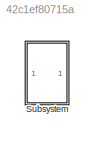
MODEL slx_42c1ef80715a
KIND model
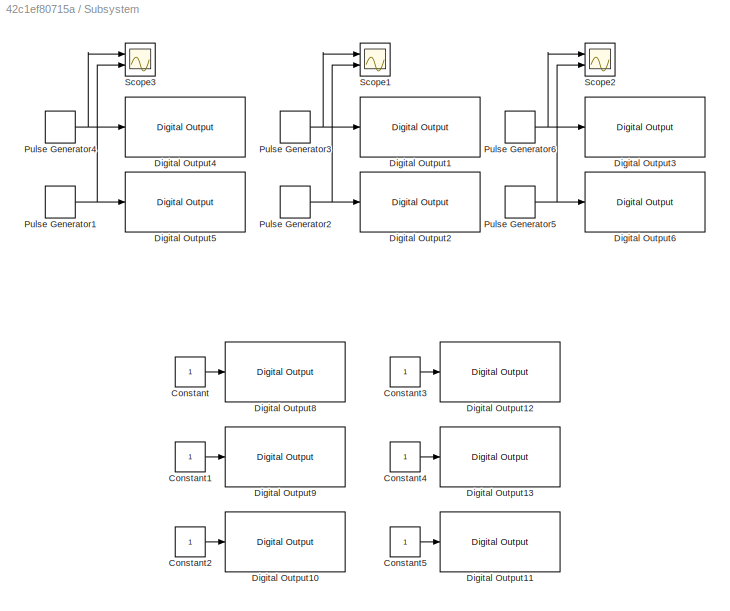
BLOCK [SubSystem] Subsystem
  FunctionWithSeparateData = off
  MaskHideContents = off
  MinAlgLoopOccurrences = off
  Opaque = off
  Ports = []
  PropExecContextOutsideSubsystem = off
  RTWSystemCode = Auto
  RequestExecContextInheritance = off
BLOCK [Constant] Subsystem/Constant
BLOCK [Constant] Subsystem/Constant1
BLOCK [Constant] Subsystem/Constant2
BLOCK [Constant] Subsystem/Constant3
BLOCK [Constant] Subsystem/Constant4
BLOCK [Constant] Subsystem/Constant5
BLOCK [Reference] Subsystem/Digital Output1  REF=arduinolib/Digital Output
  Ports = [1]
  SourceBlock = arduinolib/Digital Output
  SourceType = Arduino Digital Output
  pinNumber = 4
BLOCK [Reference] Subsystem/Digital Output10  REF=arduinolib/Digital Output
  Ports = [1]
  SourceBlock = arduinolib/Digital Output
  SourceType = Arduino Digital Output
  pinNumber = 12
BLOCK [Reference] Subsystem/Digital Output11  REF=arduinolib/Digital Output
  Ports = [1]
  SourceBlock = arduinolib/Digital Output
  SourceType = Arduino Digital Output
  pinNumber = 13
BLOCK [Reference] Subsystem/Digital Output12  REF=arduinolib/Digital Output
  Ports = [1]
  SourceBlock = arduinolib/Digital Output
  SourceType = Arduino Digital Output
  pinNumber = 9
BLOCK [Reference] Subsystem/Digital Output13  REF=arduinolib/Digital Output
  Ports = [1]
  SourceBlock = arduinolib/Digital Output
  SourceType = Arduino Digital Output
  pinNumber = 11
BLOCK [Reference] Subsystem/Digital Output2  REF=arduinolib/Digital Output
  Ports = [1]
  SourceBlock = arduinolib/Digital Output
  SourceType = Arduino Digital Output
  pinNumber = 5
BLOCK [Reference] Subsystem/Digital Output3  REF=arduinolib/Digital Output
  Ports = [1]
  SourceBlock = arduinolib/Digital Output
  SourceType = Arduino Digital Output
  pinNumber = 6
BLOCK [Reference] Subsystem/Digital Output4  REF=arduinolib/Digital Output
  Ports = [1]
  SourceBlock = arduinolib/Digital Output
  SourceType = Arduino Digital Output
  pinNumber = 2
BLOCK [Reference] Subsystem/Digital Output5  REF=arduinolib/Digital Output
  Ports = [1]
  SourceBlock = arduinolib/Digital Output
  SourceType = Arduino Digital Output
  pinNumber = 3
BLOCK [Reference] Subsystem/Digital Output6  REF=arduinolib/Digital Output
  Ports = [1]
  SourceBlock = arduinolib/Digital Output
  SourceType = Arduino Digital Output
  pinNumber = 7
BLOCK [Reference] Subsystem/Digital Output8  REF=arduinolib/Digital Output
  Ports = [1]
  SourceBlock = arduinolib/Digital Output
  SourceType = Arduino Digital Output
  pinNumber = 8
BLOCK [Reference] Subsystem/Digital Output9  REF=arduinolib/Digital Output
  Ports = [1]
  SourceBlock = arduinolib/Digital Output
  SourceType = Arduino Digital Output
  pinNumber = 10
BLOCK [DiscretePulseGenerator] Subsystem/Pulse Generator1
  Period = T
  PhaseDelay = T/2
  Ports = [0, 1]
  PulseType = Time based
  PulseWidth = 50
  SampleTime = 0.002
BLOCK [DiscretePulseGenerator] Subsystem/Pulse Generator2
  Period = T
  PhaseDelay = T/3+T/2
  Ports = [0, 1]
  PulseType = Time based
  PulseWidth = 50
  SampleTime = 0.002
BLOCK [DiscretePulseGenerator] Subsystem/Pulse Generator3
  Period = T
  PhaseDelay = T/3
  Ports = [0, 1]
  PulseType = Time based
  PulseWidth = 50
  SampleTime = 0.002
BLOCK [DiscretePulseGenerator] Subsystem/Pulse Generator4
  Period = T
  Ports = [0, 1]
  PulseType = Time based
  PulseWidth = 50
  SampleTime = 0.002
BLOCK [DiscretePulseGenerator] Subsystem/Pulse Generator5
  Period = T
  PhaseDelay = T*(2/3)+T/2
  Ports = [0, 1]
  PulseType = Time based
  PulseWidth = 50
  SampleTime = 0.002
BLOCK [DiscretePulseGenerator] Subsystem/Pulse Generator6
  Period = T
  PhaseDelay = T*(2/3)
  Ports = [0, 1]
  PulseType = Time based
  PulseWidth = 50
  SampleTime = 0.002
BLOCK [Scope] Subsystem/Scope1
  DataFormat = StructureWithTime
  Floating = off
  LimitDataPoints = off
  NumInputPorts = 2
  Ports = [2]
  SampleTime = 0
  ShowLegends = off
  YMax = 5~5
  YMin = -5~-5
  ZoomMode = xonly
BLOCK [Scope] Subsystem/Scope2
  DataFormat = StructureWithTime
  Floating = off
  LimitDataPoints = off
  NumInputPorts = 2
  Ports = [2]
  SampleTime = 0
  SaveName = ScopeData1
  ShowLegends = off
  YMax = 5~5
  YMin = -5~-5
  ZoomMode = xonly
BLOCK [Scope] Subsystem/Scope3
  DataFormat = StructureWithTime
  Floating = off
  LimitDataPoints = off
  NumInputPorts = 2
  Ports = [2]
  SampleTime = 0
  SaveName = ScopeData3
  ShowLegends = off
  YMax = 5~5
  YMin = -5~-5
  ZoomMode = xonly
LINE Subsystem/Constant1:1 -> Subsystem/Digital Output9:1
LINE Subsystem/Constant2:1 -> Subsystem/Digital Output10:1
LINE Subsystem/Constant3:1 -> Subsystem/Digital Output12:1
LINE Subsystem/Constant4:1 -> Subsystem/Digital Output13:1
LINE Subsystem/Constant5:1 -> Subsystem/Digital Output11:1
LINE Subsystem/Constant:1 -> Subsystem/Digital Output8:1
NET Subsystem/Pulse Generator1:1 -> Subsystem/Digital Output5:1, Subsystem/Scope3:2
NET Subsystem/Pulse Generator2:1 -> Subsystem/Digital Output2:1, Subsystem/Scope1:2
NET Subsystem/Pulse Generator3:1 -> Subsystem/Digital Output1:1, Subsystem/Scope1:1
NET Subsystem/Pulse Generator4:1 -> Subsystem/Digital Output4:1, Subsystem/Scope3:1
NET Subsystem/Pulse Generator5:1 -> Subsystem/Digital Output6:1, Subsystem/Scope2:2
NET Subsystem/Pulse Generator6:1 -> Subsystem/Digital Output3:1, Subsystem/Scope2:1
note: NET lines group one-source signal fan-out (src -> all destinations, sorted); 1:1 wires keep LINE
